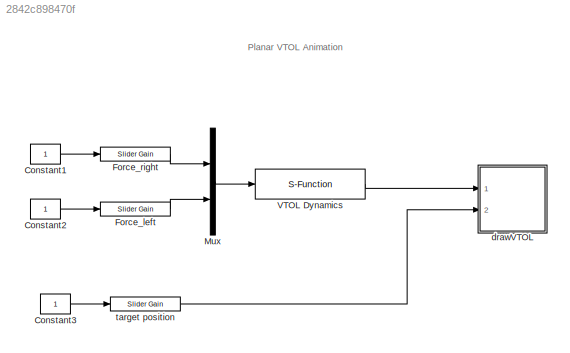
MODEL slx_2842c898470f
KIND model
CONFIG AbsTol = auto
CONFIG FixedStep = auto
CONFIG InitFcn = param
CONFIG MaxStep = auto
CONFIG MinStep = auto
CONFIG RelTol = 1e-3
CONFIG SampleTimeConstraint = Unconstrained
CONFIG Solver = ode45
CONFIG SolverMode = Auto
CONFIG SolverName = ode45
CONFIG StartTime = 0.0
CONFIG StopTime = 10000
BLOCK [Constant] Constant1
BLOCK [Constant] Constant2
BLOCK [Constant] Constant3
BLOCK [Reference] Force_left  REF=simulink/Math
Operations/Slider
Gain
  Ports = [1, 1]
  SourceBlock = simulink/Math\nOperations/Slider\nGain
  SourceType = Slider Gain
  gain = 7.9575
  high = 50
  low = -10
BLOCK [Reference] Force_right  REF=simulink/Math
Operations/Slider
Gain
  Ports = [1, 1]
  SourceBlock = simulink/Math\nOperations/Slider\nGain
  SourceType = Slider Gain
  gain = 7.9575
  high = 50
  low = -10
BLOCK [Mux] Mux
  DisplayOption = bar
  Inputs = 2
  Ports = [2, 1]
BLOCK [S-Function] VTOL Dynamics
  FunctionName = VTOL_dynamics
  Parameters = AP
  Ports = [1, 1]
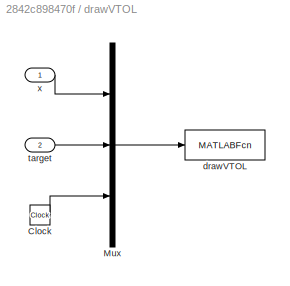
BLOCK [SubSystem] drawVTOL
  Ports = [2]
  RequestExecContextInheritance = off
BLOCK [Clock] drawVTOL/Clock
BLOCK [Mux] drawVTOL/Mux
  DisplayOption = bar
  Inputs = 3
  Ports = [3, 1]
BLOCK [MATLABFcn] drawVTOL/drawVTOL
  MATLABFcn = drawVTOL(u)
  OutputDimensions = 0
  Ports = [1]
  SampleTime = 0.001
BLOCK [Inport] drawVTOL/target
  IconDisplay = Port number
  Port = 2
BLOCK [Inport] drawVTOL/x
  IconDisplay = Port number
BLOCK [Reference] target position  REF=simulink/Math
Operations/Slider
Gain
  Ports = [1, 1]
  SourceBlock = simulink/Math\nOperations/Slider\nGain
  SourceType = Slider Gain
  gain = 1.8
  high = 50
  low = -10
ANNOTATION (root): Planar VTOL Animation
LINE Constant1:1 -> Force_right:1
LINE Constant2:1 -> Force_left:1
LINE Constant3:1 -> target position:1
LINE Force_left:1 -> Mux:2
LINE Force_right:1 -> Mux:1
LINE Mux:1 -> VTOL Dynamics:1
LINE VTOL Dynamics:1 -> drawVTOL:1
LINE drawVTOL/Clock:1 -> drawVTOL/Mux:3
LINE drawVTOL/Mux:1 -> drawVTOL/drawVTOL:1
LINE drawVTOL/target:1 -> drawVTOL/Mux:2
LINE drawVTOL/x:1 -> drawVTOL/Mux:1
LINE target position:1 -> drawVTOL:2
